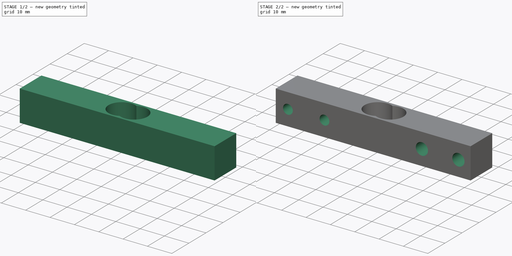
[diagram: build sequence overview — one tinted view per stage of 2, left to right]
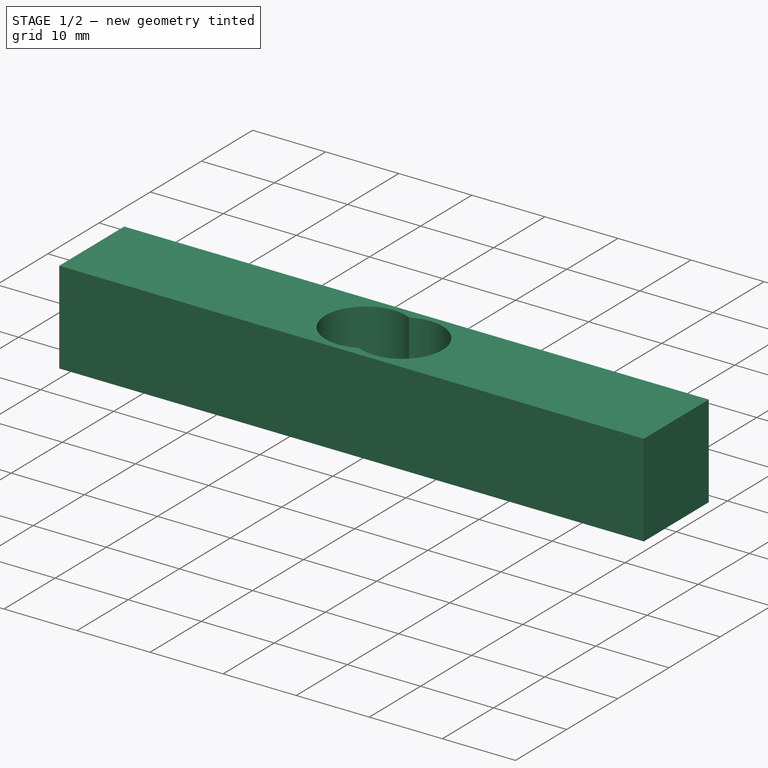
[diagram: stage 1 of 2 — iso view after this stage's code; geometry added in this stage tinted green]
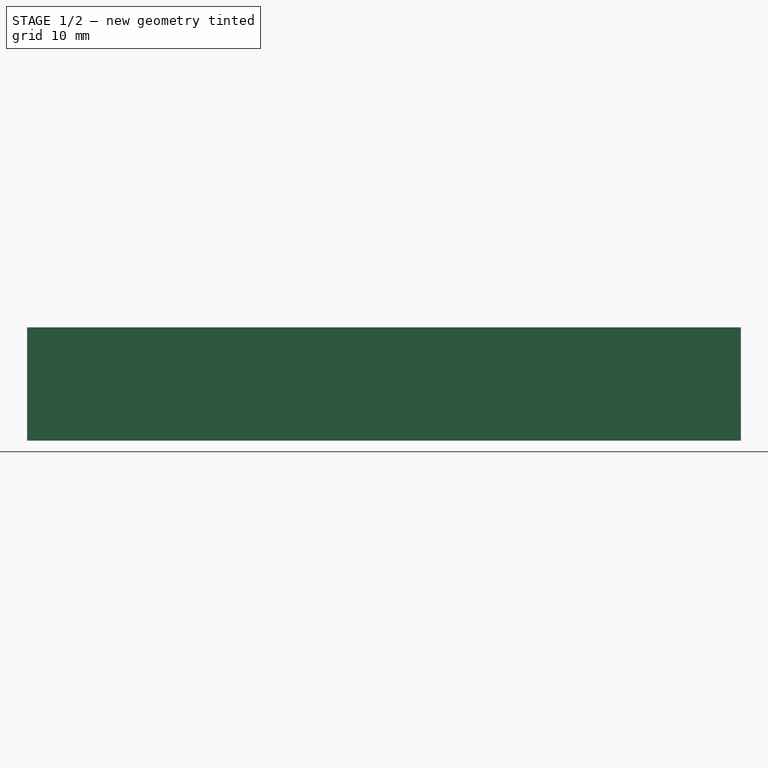
[diagram: stage 1 of 2 — front view after this stage's code; geometry added in this stage tinted green]
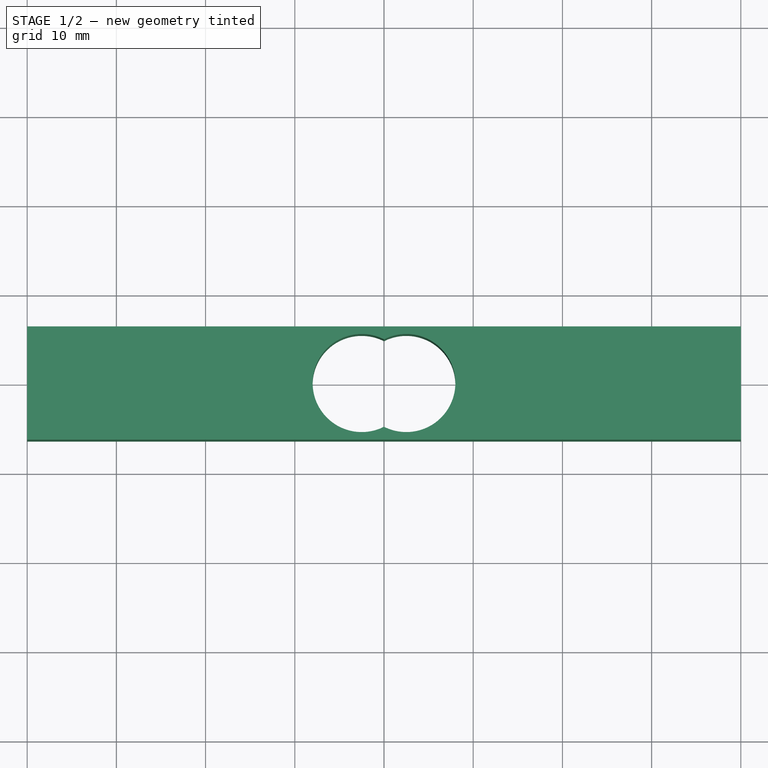
[diagram: stage 1 of 2 — top view after this stage's code; geometry added in this stage tinted green]
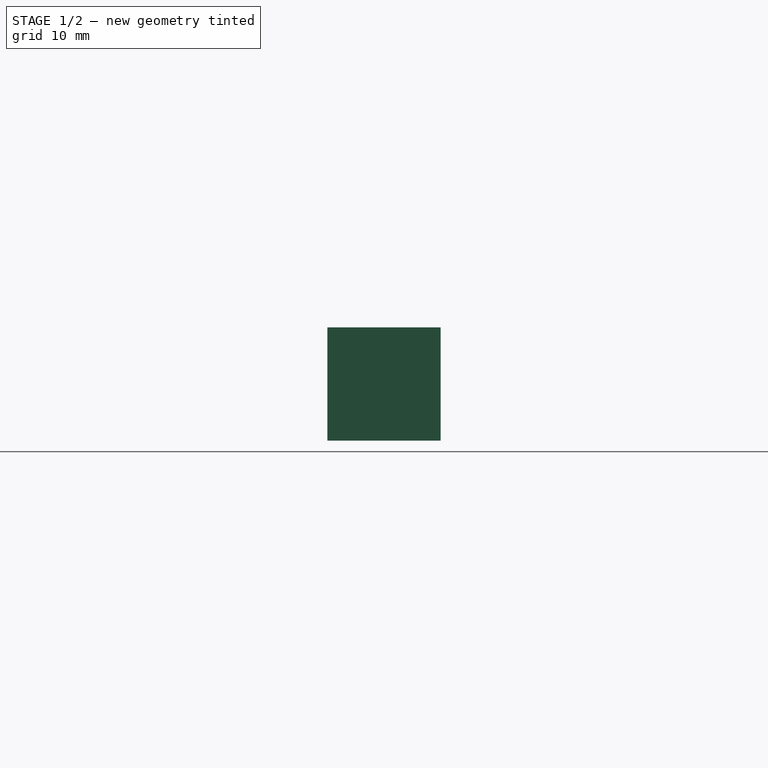
[diagram: stage 1 of 2 — right view after this stage's code; geometry added in this stage tinted green]
FCSTD DOCUMENT  (FreeCAD 0.19R24276 (Git))
Label: load cell 4541
License: All rights reserved
LicenseURL: http://en.wikipedia.org/wiki/All_rights_reserved
objects: PartDesign::CoordinateSystem×3, Sketcher::SketchObject×2, PartDesign::Pad×1, PartDesign::Pocket×1, PartDesign::Body×1, App::Part×1
note: 10 computed .brp shape members not serialized (recipe doc carries the construction recipe); baked Part::Feature solids carry a one-line shape summary decoded from their .brp

FEATURE [Sketcher::SketchObject] Sketch
  FullyConstrained = true
  MapMode = 5
  Support = -> [XY_Plane]
  sketch-geometry (6):
    g0: LineSegment StartX=-40 StartY=6.35 StartZ=0 EndX=40 EndY=6.35 EndZ=0
    g1: LineSegment StartX=40 StartY=6.35 StartZ=0 EndX=40 EndY=-6.35 EndZ=0
    g2: LineSegment StartX=40 StartY=-6.35 StartZ=0 EndX=-40 EndY=-6.35 EndZ=0
    g3: LineSegment StartX=-40 StartY=-6.35 StartZ=0 EndX=-40 EndY=6.35 EndZ=0
    g4: ArcOfCircle CenterX=2.5 CenterY=0 CenterZ=0 NormalX=0 NormalY=0 NormalZ=1 AngleXU=0 Radius=5.5 StartAngle=4.24053 EndAngle=8.32584
    g5: ArcOfCircle CenterX=-2.5 CenterY=0 CenterZ=0 NormalX=0 NormalY=0 NormalZ=1 AngleXU=0 Radius=5.5 StartAngle=1.09893 EndAngle=5.18425
  constraints (17):
    c: Coincident(g0,g1)
    c: Coincident(g1,g2)
    c: Coincident(g2,g3)
    c: Coincident(g3,g0)
    c: Horizontal(g2)
    c: Vertical(g3)
    c: Symmetric(g0,g0,g-2)
    c: DistanceX(g0,g0) = 80
    c: Symmetric(g0,g1,g-1)
    c: DistanceY(g1,g1) = 12.7
    c: PointOnObject(g4,g-1)
    c: PointOnObject(g4,g-2)
    c: Coincident(g5,g4)
    c: Coincident(g5,g4)
    c: Symmetric(g5,g4,g-2)
    c: DistanceX(g5,g4) = 5
    c: Diameter(g4) = 11
FEATURE [PartDesign::Pad] Pad
  Direction = (1,1,1)
  Length = 12.7
  Length2 = 100
  Profile = -> Sketch
  Refine = true
  Type = 0
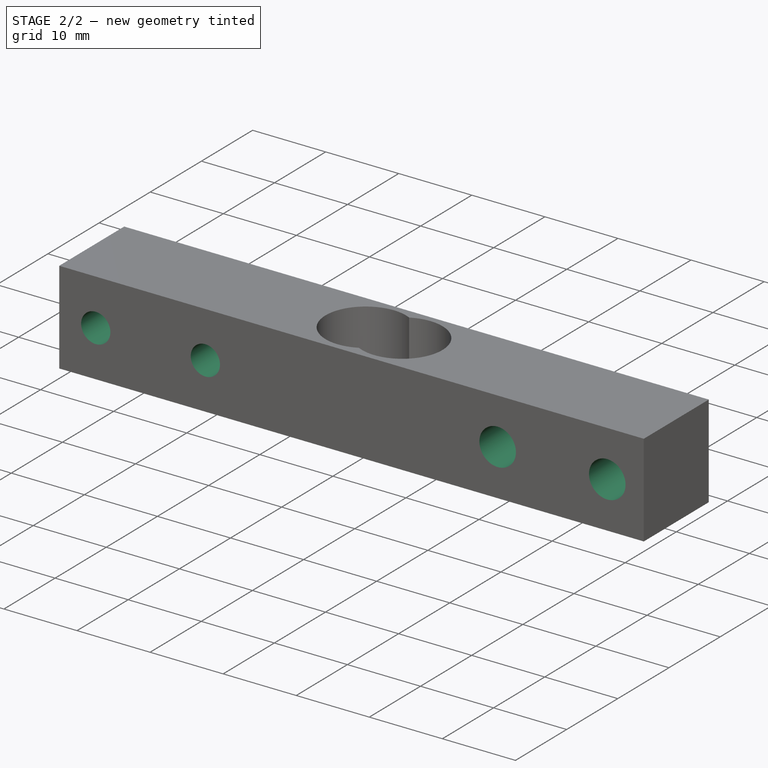
[diagram: stage 2 of 2 — iso view after this stage's code; geometry added in this stage tinted green]
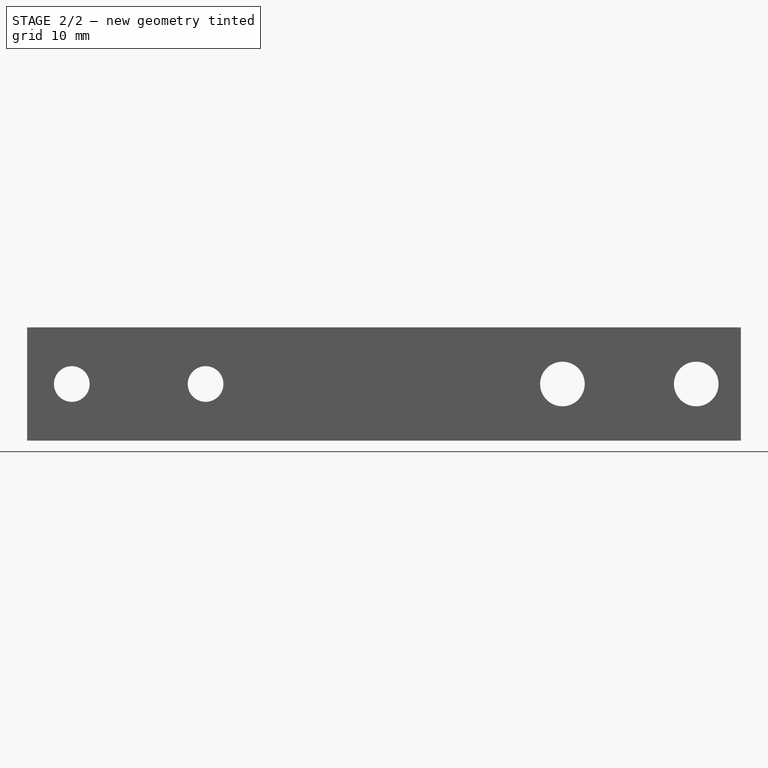
[diagram: stage 2 of 2 — front view after this stage's code; geometry added in this stage tinted green]
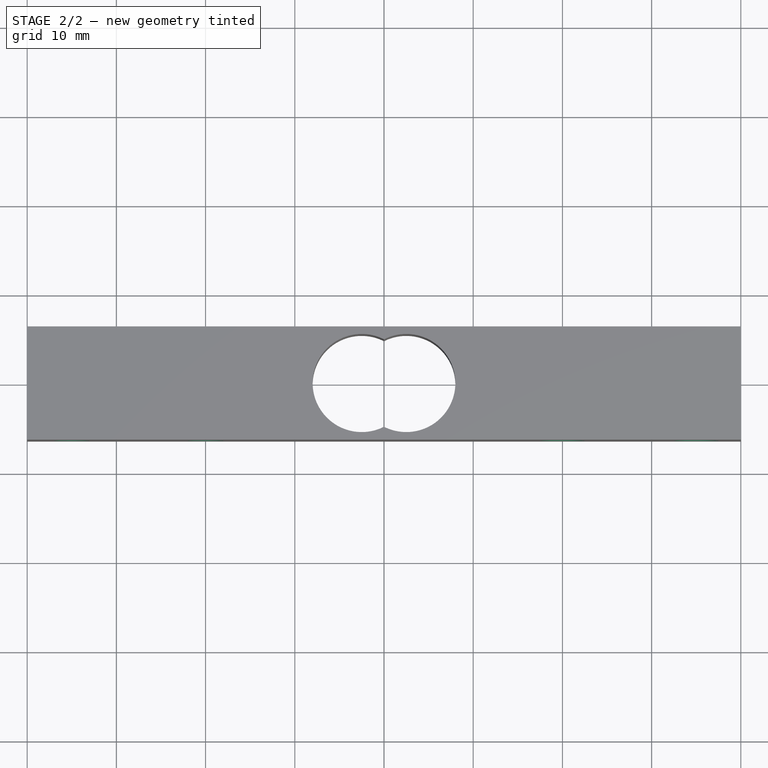
[diagram: stage 2 of 2 — top view after this stage's code; geometry added in this stage tinted green]
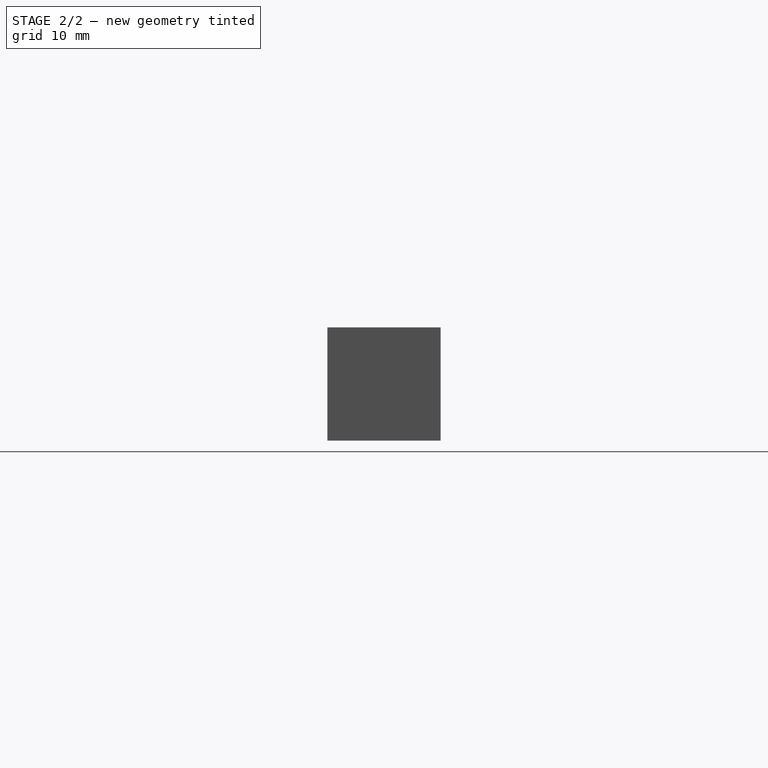
[diagram: stage 2 of 2 — right view after this stage's code; geometry added in this stage tinted green]
FEATURE [Sketcher::SketchObject] Sketch001
  FullyConstrained = true
  MapMode = 5
  Placement = pos=(0,0,0) rot=(1,0,0;1.5708rad)
  Support = -> [XZ_Plane]
  sketch-geometry (4):
    g0: Circle CenterX=-35 CenterY=6.35 CenterZ=0 NormalX=0 NormalY=0 NormalZ=1 AngleXU=0 Radius=2
    g1: Circle CenterX=-20 CenterY=6.35 CenterZ=0 NormalX=0 NormalY=0 NormalZ=1 AngleXU=0 Radius=2
    g2: Circle CenterX=20 CenterY=6.35 CenterZ=0 NormalX=0 NormalY=0 NormalZ=1 AngleXU=0 Radius=2.5
    g3: Circle CenterX=35 CenterY=6.35 CenterZ=0 NormalX=0 NormalY=0 NormalZ=1 AngleXU=0 Radius=2.5
  constraints (10):
    c: Equal(g3,g2)
    c: Diameter(g3) = 5
    c: Symmetric(g3,g0,g-2)
    c: Symmetric(g1,g2,g-2)
    c: Equal(g1,g0)
    c: Diameter(g1) = 4
    c: DistanceY(g-1,g0) = 6.35
    c: Horizontal(g0,g1)
    c: DistanceX(g2,g3) = 15
    c: DistanceX(g1,g2) = 40
FEATURE [PartDesign::Pocket] Pocket
  BaseFeature = -> Pad
  Length = 5
  Length2 = 100
  Midplane = true
  Profile = -> Sketch001
  Refine = true
  Type = 1
FEATURE [PartDesign::Body] Body
  Group = -> [Sketch,Pad,Sketch001,Pocket]
  Origin = -> Origin
  Tip = -> Pocket
FEATURE [PartDesign::CoordinateSystem] LCS_0
  AttacherType = Attacher::AttachEngine3D
  MapMode = 2
  Support = -> [X_Axis001]
FEATURE [PartDesign::CoordinateSystem] loadCellBracket
  AttacherType = Attacher::AttachEngine3D
  MapMode = 11
  Placement = pos=(20,6.35,6.35) rot=(0.57735,-0.57735,0.57735;2.0944rad)
  Support = -> [Pocket]
FEATURE [PartDesign::CoordinateSystem] rollerBracket
  AttacherType = Attacher::AttachEngine3D
  MapMode = 11
  Placement = pos=(-20,6.35,6.35) rot=(0.57735,-0.57735,0.57735;2.0944rad)
  Support = -> [Pocket]
FEATURE [App::Part] LOAD_CELL_4541
  Group = -> [LCS_0,Body,loadCellBracket,rollerBracket]
  Origin = -> Origin001
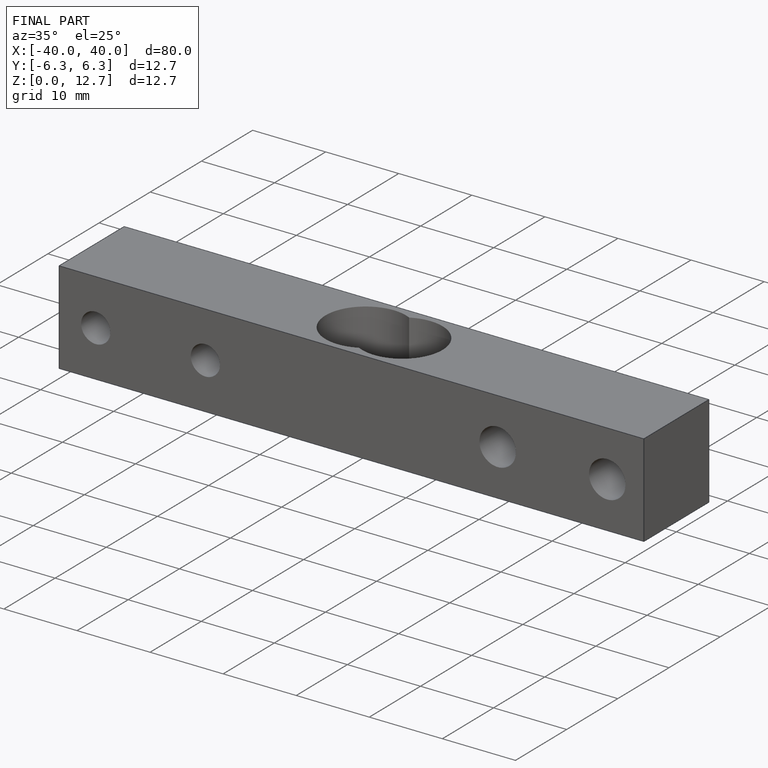
[diagram: finished part — iso view with bounding-box wireframe]
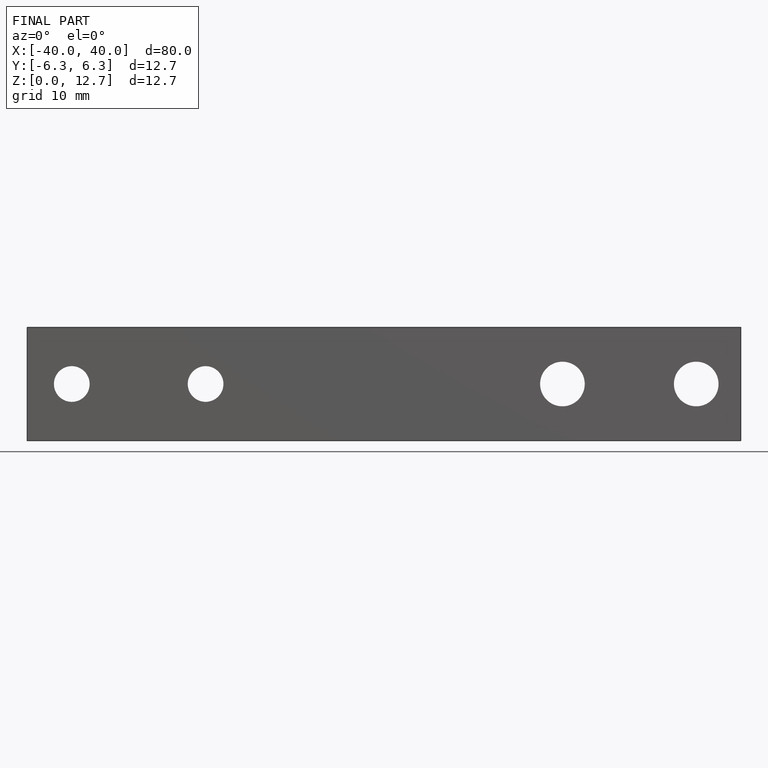
[diagram: finished part — front view with bounding-box wireframe]
